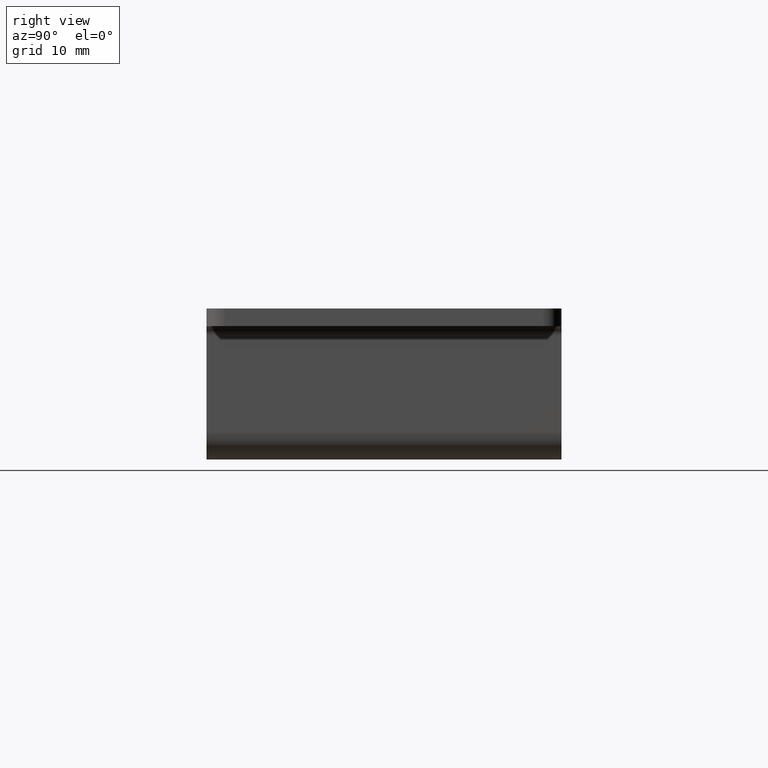
[diagram: clean part render]
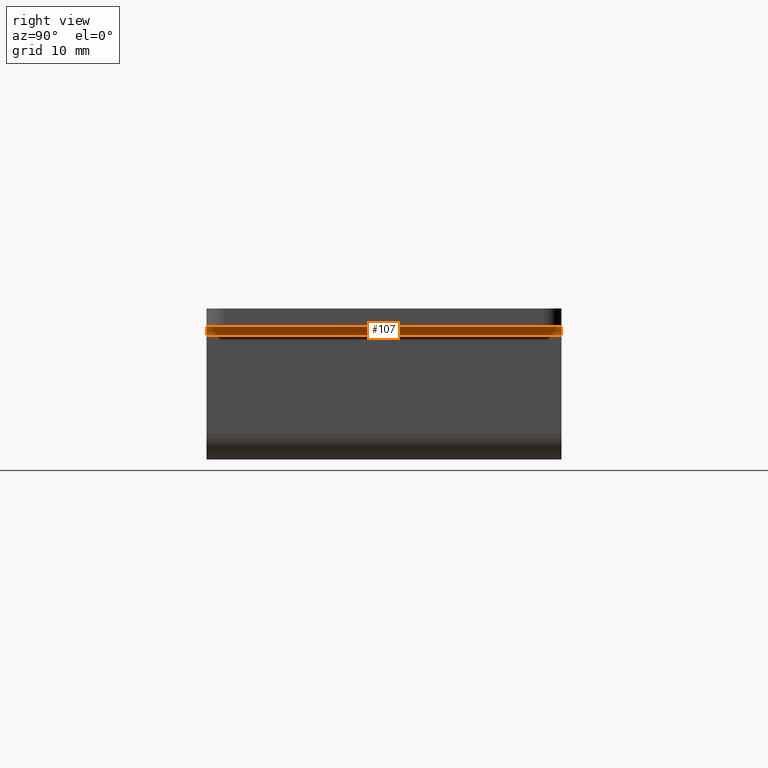
[diagram: same view with one face highlighted and labeled with its STEP entity id]
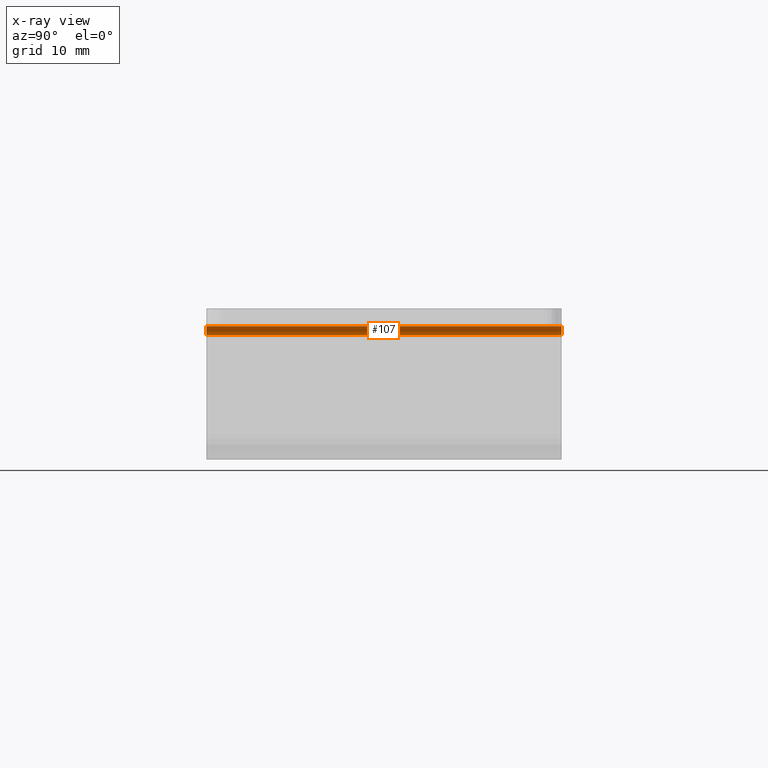
[diagram: x-ray of the same camera — body ghosted, the highlighted face saturated]
A machine part, right view. The second image highlights one B-rep face of the part: STEP entity #107.
The next image is the same camera in x-ray: the body ghosted, the highlighted face saturated — about 0% of this face is hidden behind the body in this view.
In plain terms, the highlighted cylindrical surface (edge-blend (fillet) strip) has radius 1 mm, axis along (0, 1, -0).
Its self-contained STEP definition (entity closure, byte-faithful):
#49=CARTESIAN_POINT('',(-39.999999999839872,19.999999999919964,-2.999999999996363));
#50=VERTEX_POINT('',#49);
#57=CARTESIAN_POINT('',(-39.999999999839872,-19.999999999919964,-2.999999999996361));
#58=VERTEX_POINT('',#57);
#59=CARTESIAN_POINT('',(-39.999999999839872,19.999999999919964,-2.999999999996363));
#60=DIRECTION('',(0.0,-1.0,0.0));
#61=VECTOR('',#60,39.999999999839929);
#62=LINE('',#59,#61);
#63=EDGE_CURVE('',#50,#58,#62,.T.);
#75=CARTESIAN_POINT('',(-38.999999999843510,19.999999999919964,-2.999999999996363));
#76=DIRECTION('',(0.0,1.0,-6.123234E-017));
#77=DIRECTION('',(-1.0,7.498799E-033,1.224647E-016));
#78=AXIS2_PLACEMENT_3D('',#75,#76,#77);
#79=CYLINDRICAL_SURFACE('',#78,0.999999999996366);
#80=CARTESIAN_POINT('',(-38.999999999843510,19.999999999919964,-2.000000000000001));
#81=VERTEX_POINT('',#80);
#82=CARTESIAN_POINT('',(-38.999999999843510,19.999999999919964,-2.999999999996363));
#83=DIRECTION('',(0.0,1.0,-6.123234E-017));
#84=DIRECTION('',(1.0,0.0,0.0));
#85=AXIS2_PLACEMENT_3D('',#82,#83,#84);
#86=CIRCLE('',#85,0.999999999996366);
#87=EDGE_CURVE('',#50,#81,#86,.T.);
#88=ORIENTED_EDGE('',*,*,#87,.T.);
#89=CARTESIAN_POINT('',(-38.999999999843510,-19.999999999919964,-1.999999999999999));
#90=VERTEX_POINT('',#89);
#91=CARTESIAN_POINT('',(-38.999999999843510,19.999999999919964,-2.000000000000001));
#92=DIRECTION('',(0.0,-1.0,0.0));
#93=VECTOR('',#92,39.999999999839929);
#94=LINE('',#91,#93);
#95=EDGE_CURVE('',#81,#90,#94,.T.);
#96=ORIENTED_EDGE('',*,*,#95,.T.);
#97=CARTESIAN_POINT('',(-38.999999999843510,-19.999999999919964,-2.999999999996361));
#98=DIRECTION('',(0.0,1.0,-6.123234E-017));
#99=DIRECTION('',(1.0,0.0,0.0));
#100=AXIS2_PLACEMENT_3D('',#97,#98,#99);
#101=CIRCLE('',#100,0.999999999996366);
#102=EDGE_CURVE('',#58,#90,#101,.T.);
#103=ORIENTED_EDGE('',*,*,#102,.F.);
#104=ORIENTED_EDGE('',*,*,#63,.F.);
#105=EDGE_LOOP('',(#88,#96,#103,#104));
#106=FACE_OUTER_BOUND('',#105,.T.);
#107=ADVANCED_FACE('',(#106),#79,.F.);